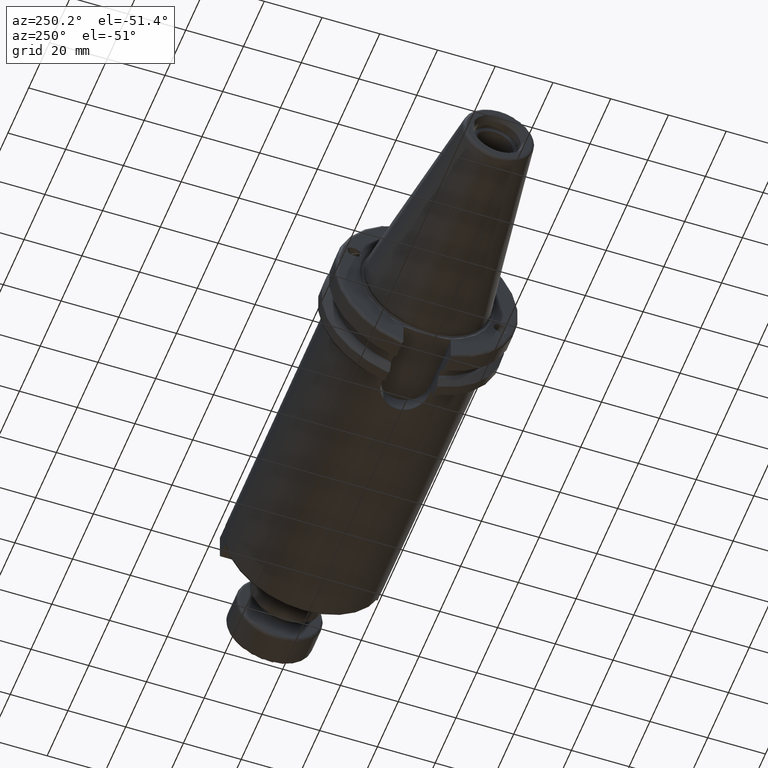
[diagram: clean part render]
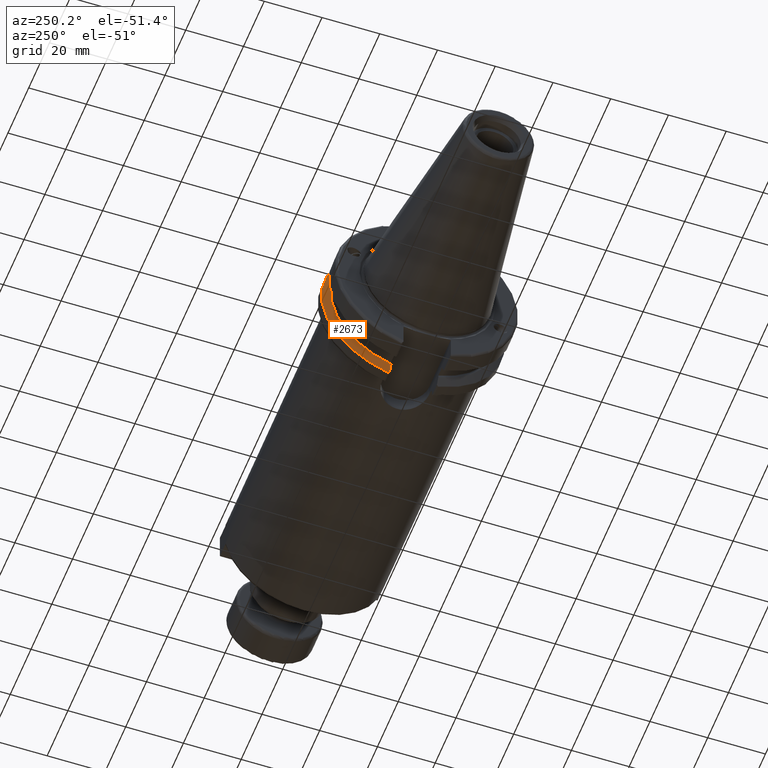
[diagram: same view with one face highlighted and labeled with its STEP entity id]
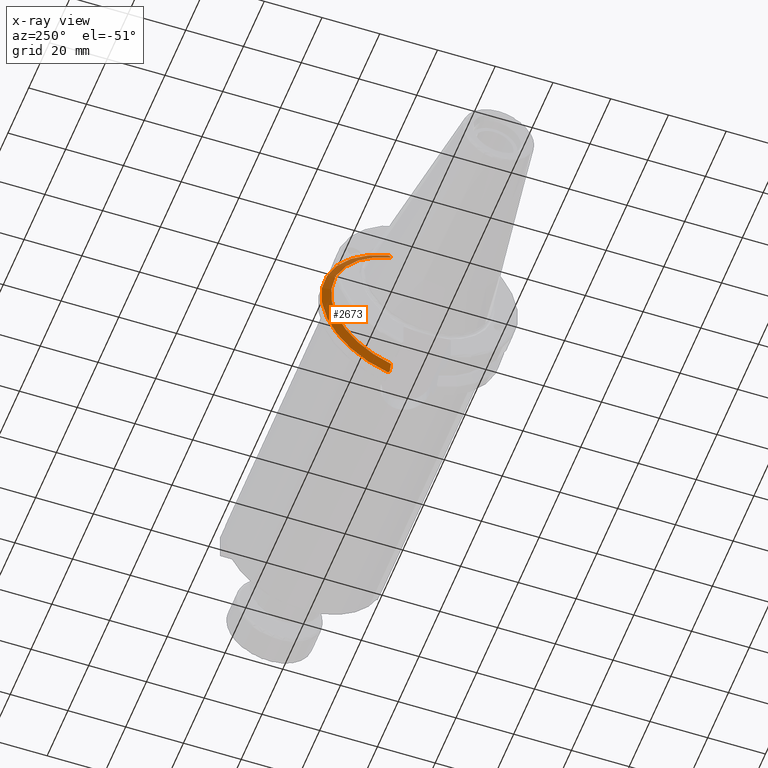
[diagram: x-ray of the same camera — body ghosted, the highlighted face saturated]
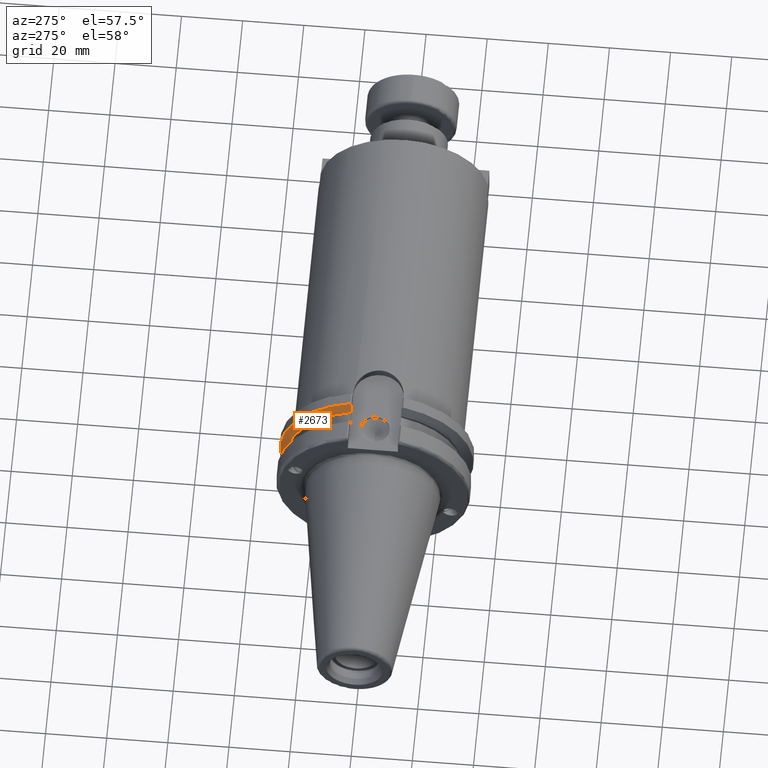
[diagram: same view with one face highlighted and labeled with its STEP entity id]
A machine part, auxiliary view. The second image highlights one B-rep face of the part: STEP entity #2673.
The next image is the same camera in x-ray: the body ghosted, the highlighted face saturated — about 3% of this face is hidden behind the body in this view.
A second angle (auxiliary view) of the same face is appended — the face is thin or edge-on in the first view.
In plain terms, the highlighted conical surface has half-angle 60 deg.
Its self-contained STEP definition (entity closure, byte-faithful):
#61=(
BOUNDED_CURVE()
B_SPLINE_CURVE(2,(#4755,#4756,#4757),.UNSPECIFIED.,.F.,.F.)
B_SPLINE_CURVE_WITH_KNOTS((3,3),(0.329353533631226,0.393258405001025),
 .UNSPECIFIED.)
CURVE()
GEOMETRIC_REPRESENTATION_ITEM()
RATIONAL_B_SPLINE_CURVE((1.00047644010577,1.00028444218285,1.))
REPRESENTATION_ITEM('')
);
#62=(
BOUNDED_CURVE()
B_SPLINE_CURVE(2,(#4772,#4773,#4774),.UNSPECIFIED.,.F.,.F.)
B_SPLINE_CURVE_WITH_KNOTS((3,3),(0.0550586467393769,0.331607789535852),
 .UNSPECIFIED.)
CURVE()
GEOMETRIC_REPRESENTATION_ITEM()
RATIONAL_B_SPLINE_CURVE((1.00031614444922,1.00095203903643,1.))
REPRESENTATION_ITEM('')
);
#69=(
BOUNDED_CURVE()
B_SPLINE_CURVE(2,(#4955,#4956,#4957),.UNSPECIFIED.,.F.,.F.)
B_SPLINE_CURVE_WITH_KNOTS((3,3),(0.,0.276549142795274),.UNSPECIFIED.)
CURVE()
GEOMETRIC_REPRESENTATION_ITEM()
RATIONAL_B_SPLINE_CURVE((1.,1.00095203903599,1.00031614444907))
REPRESENTATION_ITEM('')
);
#70=(
BOUNDED_CURVE()
B_SPLINE_CURVE(2,(#4973,#4974,#4975),.UNSPECIFIED.,.F.,.F.)
B_SPLINE_CURVE_WITH_KNOTS((3,3),(0.,0.0639048713675655),.UNSPECIFIED.)
CURVE()
GEOMETRIC_REPRESENTATION_ITEM()
RATIONAL_B_SPLINE_CURVE((1.,1.00028444218286,1.00047644010578))
REPRESENTATION_ITEM('')
);
#126=CONICAL_SURFACE('',#3037,30.3546886482472,1.0471975511966);
#323=FACE_OUTER_BOUND('',#493,.T.);
#493=EDGE_LOOP('',(#2251,#2252,#2253,#2254,#2255,#2256,#2257,#2258,#2259));
#634=CIRCLE('',#2983,28.9593772964944);
#652=CIRCLE('',#3030,31.75);
#655=CIRCLE('',#3038,28.9593772964944);
#1067=B_SPLINE_CURVE_WITH_KNOTS('',3,(#4595,#4596,#4597,#4598,#4599,#4600,
#4601,#4602),.UNSPECIFIED.,.F.,.F.,(4,2,2,4),(0.451995700189024,0.464547828547662,
0.504528771685168,0.544509714822673),.UNSPECIFIED.);
#1071=B_SPLINE_CURVE_WITH_KNOTS('',3,(#4657,#4658,#4659,#4660,#4661,#4662,
#4663,#4664),.UNSPECIFIED.,.F.,.F.,(4,2,2,4),(0.544509714822673,0.584490657960178,
0.624471601097683,0.637023729456321),.UNSPECIFIED.);
#1202=VERTEX_POINT('',#4592);
#1203=VERTEX_POINT('',#4594);
#1210=VERTEX_POINT('',#4655);
#1219=VERTEX_POINT('',#4696);
#1229=VERTEX_POINT('',#4752);
#1230=VERTEX_POINT('',#4754);
#1267=VERTEX_POINT('',#4952);
#1268=VERTEX_POINT('',#4954);
#1271=VERTEX_POINT('',#4971);
#1513=EDGE_CURVE('',#1203,#1202,#1067,.T.);
#1521=EDGE_CURVE('',#1202,#1210,#1071,.T.);
#1533=EDGE_CURVE('',#1219,#1203,#634,.T.);
#1549=EDGE_CURVE('',#1229,#1230,#61,.T.);
#1555=EDGE_CURVE('',#1229,#1219,#62,.T.);
#1607=EDGE_CURVE('',#1268,#1267,#69,.T.);
#1616=EDGE_CURVE('',#1271,#1267,#70,.T.);
#1617=EDGE_CURVE('',#1230,#1271,#652,.T.);
#1623=EDGE_CURVE('',#1210,#1268,#655,.T.);
#2251=ORIENTED_EDGE('',*,*,#1513,.T.);
#2252=ORIENTED_EDGE('',*,*,#1521,.T.);
#2253=ORIENTED_EDGE('',*,*,#1623,.T.);
#2254=ORIENTED_EDGE('',*,*,#1607,.T.);
#2255=ORIENTED_EDGE('',*,*,#1616,.F.);
#2256=ORIENTED_EDGE('',*,*,#1617,.F.);
#2257=ORIENTED_EDGE('',*,*,#1549,.F.);
#2258=ORIENTED_EDGE('',*,*,#1555,.T.);
#2259=ORIENTED_EDGE('',*,*,#1533,.T.);
#2673=ADVANCED_FACE('',(#323),#126,.T.);
#2983=AXIS2_PLACEMENT_3D('',#4697,#3520,#3521);
#3030=AXIS2_PLACEMENT_3D('',#4977,#3653,#3654);
#3037=AXIS2_PLACEMENT_3D('',#4990,#3670,#3671);
#3038=AXIS2_PLACEMENT_3D('',#4991,#3672,#3673);
#3520=DIRECTION('center_axis',(1.,0.,0.));
#3521=DIRECTION('ref_axis',(0.,0.,-1.));
#3653=DIRECTION('center_axis',(1.,0.,0.));
#3654=DIRECTION('ref_axis',(0.,0.,-1.));
#3670=DIRECTION('center_axis',(1.,0.,0.));
#3671=DIRECTION('ref_axis',(0.,1.,0.));
#3672=DIRECTION('center_axis',(1.,0.,0.));
#3673=DIRECTION('ref_axis',(0.,0.,-1.));
#4592=CARTESIAN_POINT('',(13.2341,27.51401829017,10.0142836826778));
#4594=CARTESIAN_POINT('',(13.0491,27.4956274489925,9.09043478536246));
#4595=CARTESIAN_POINT('Ctrl Pts',(13.0491,27.4956274489925,9.09043478536246));
#4596=CARTESIAN_POINT('Ctrl Pts',(13.0632204071996,27.5087667900418,9.12860597076218));
#4597=CARTESIAN_POINT('Ctrl Pts',(13.0766929817857,27.5206055003512,9.16696618806878));
#4598=CARTESIAN_POINT('Ctrl Pts',(13.130081441159,27.5642934663232,9.32791534028657));
#4599=CARTESIAN_POINT('Ctrl Pts',(13.1682197084175,27.5867382255984,9.46717946402649));
#4600=CARTESIAN_POINT('Ctrl Pts',(13.2204106446058,27.5847569104122,9.74771639360672));
#4601=CARTESIAN_POINT('Ctrl Pts',(13.2341,27.559599249844,9.88905102521651));
#4602=CARTESIAN_POINT('Ctrl Pts',(13.2341,27.51401829017,10.0142836826778));
#4655=CARTESIAN_POINT('',(13.0491,26.9060914640648,10.7101715919071));
#4657=CARTESIAN_POINT('Ctrl Pts',(13.2341,27.51401829017,10.0142836826778));
#4658=CARTESIAN_POINT('Ctrl Pts',(13.2341,27.4684373304961,10.139516340139));
#4659=CARTESIAN_POINT('Ctrl Pts',(13.2204106446058,27.3968610665578,10.2639559818059));
#4660=CARTESIAN_POINT('Ctrl Pts',(13.1682197084175,27.2180531796526,10.4801333026531));
#4661=CARTESIAN_POINT('Ctrl Pts',(13.130081441159,27.1113422433189,10.5723885976054));
#4662=CARTESIAN_POINT('Ctrl Pts',(13.0766929817857,26.9744191989197,10.6676007180674));
#4663=CARTESIAN_POINT('Ctrl Pts',(13.0632204071996,26.9406927482839,10.6893765730703));
#4664=CARTESIAN_POINT('Ctrl Pts',(13.0491,26.9060914640648,10.7101715919071));
#4696=CARTESIAN_POINT('',(13.0491,8.19,-27.7771386827498));
#4697=CARTESIAN_POINT('Origin',(13.0491,0.,0.));
#4752=CARTESIAN_POINT('',(14.3815146964874,8.19,-30.1755016258903));
#4754=CARTESIAN_POINT('',(14.6602667690756,8.67204822802685,-30.5427254764662));
#4755=CARTESIAN_POINT('Ctrl Pts',(14.3815146964874,8.19,-30.1755016258903));
#4756=CARTESIAN_POINT('Ctrl Pts',(14.5192085187884,8.42917748263464,-30.3577067892692));
#4757=CARTESIAN_POINT('Ctrl Pts',(14.6602667690756,8.67204822802686,-30.5427254764662));
#4772=CARTESIAN_POINT('Ctrl Pts',(14.3815146964874,8.18999999999999,-30.1755016258903));
#4773=CARTESIAN_POINT('Ctrl Pts',(13.687736438474,8.19,-28.9303689539668));
#4774=CARTESIAN_POINT('Ctrl Pts',(13.0491,8.19,-27.7771386827498));
#4952=CARTESIAN_POINT('',(14.3815146964874,8.19,30.1755016258903));
#4954=CARTESIAN_POINT('',(13.0491,8.19,27.7771386827498));
#4955=CARTESIAN_POINT('Ctrl Pts',(13.0491,8.19,27.7771386827498));
#4956=CARTESIAN_POINT('Ctrl Pts',(13.687736438489,8.19,28.9303689539938));
#4957=CARTESIAN_POINT('Ctrl Pts',(14.3815146964874,8.19,30.1755016258903));
#4971=CARTESIAN_POINT('',(14.6602667690756,8.67204822802685,30.5427254764662));
#4973=CARTESIAN_POINT('Ctrl Pts',(14.6602667690756,8.67204822802687,30.5427254764662));
#4974=CARTESIAN_POINT('Ctrl Pts',(14.5192085187837,8.42917748262644,30.357706789263));
#4975=CARTESIAN_POINT('Ctrl Pts',(14.3815146964874,8.19,30.1755016258903));
#4977=CARTESIAN_POINT('Origin',(14.6602667690756,0.,0.));
#4990=CARTESIAN_POINT('Origin',(13.8546833845378,0.,0.));
#4991=CARTESIAN_POINT('Origin',(13.0491,0.,0.));